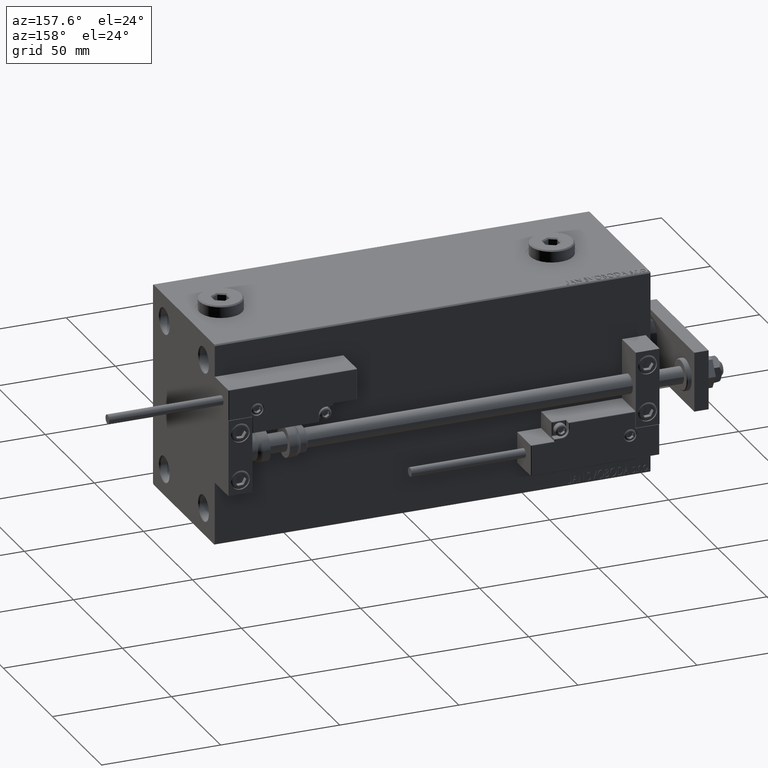
[diagram: clean part render]
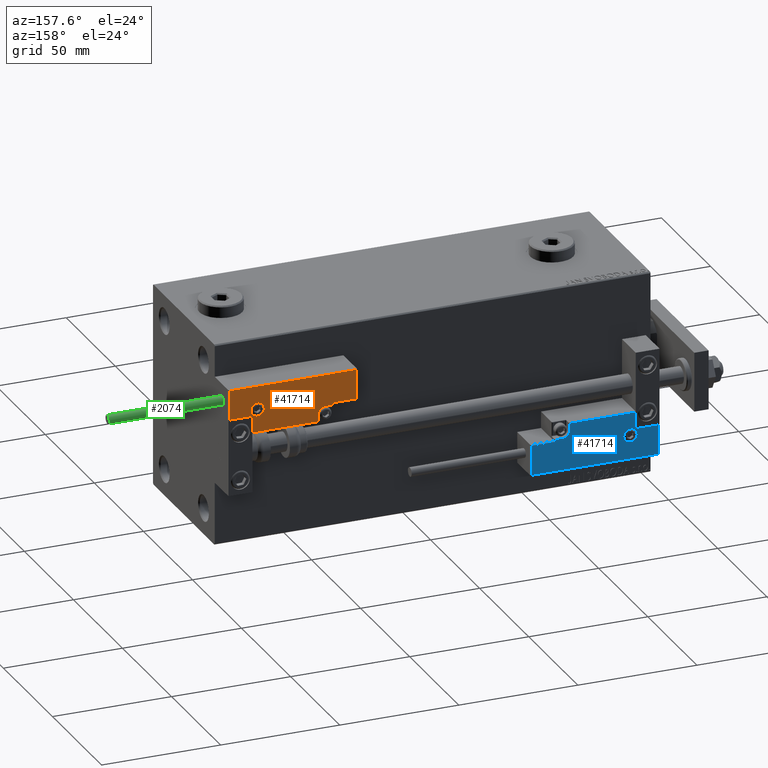
[diagram: same view with three faces highlighted in distinct colors, each labeled with its STEP entity id]
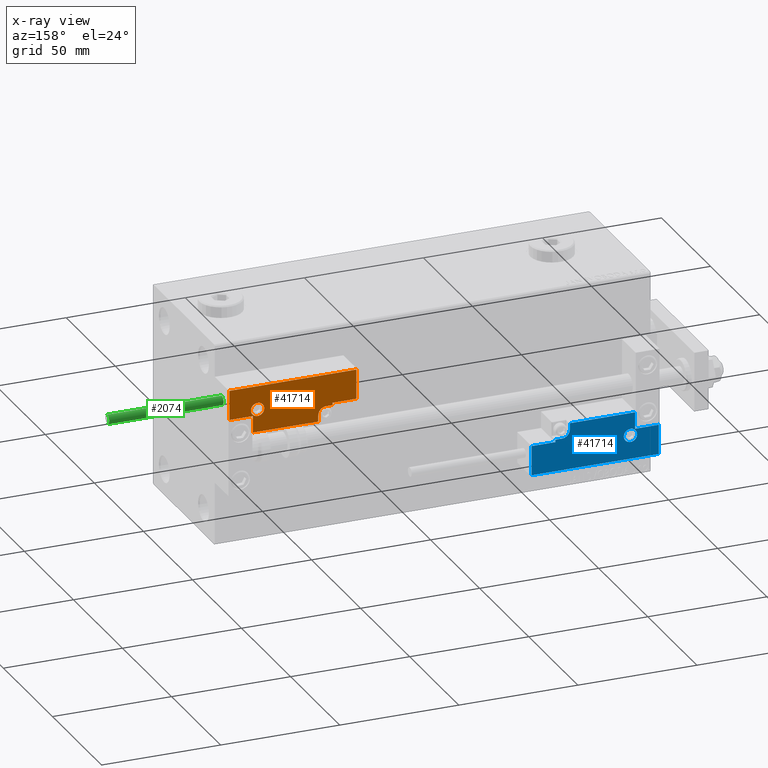
[diagram: x-ray of the same camera — body ghosted, the three highlighted faces saturated]
A machine part, auxiliary view with three faces highlighted in distinct colors.
The next image is the same camera in x-ray (body ghosted, the three faces saturated) — at least one of them is partly hidden behind the body in this view.
Their STEP definitions:

[orange] entity #41714 — the highlighted planar face has unit normal (-0, 1, -0).
#424 = EDGE_CURVE ( 'NONE', #44706, #50837, #34083, .T. ) ;
#619 = DIRECTION ( 'NONE',  ( -0.000000000000000000, 1.000000000000000000, -0.000000000000000000 ) ) ;
#1247 = EDGE_CURVE ( 'NONE', #43377, #32264, #29357, .T. ) ;
#2872 = CARTESIAN_POINT ( 'NONE',  ( -16.69999999999999218, 3.252606517456513302E-15, 14.00000000000000000 ) ) ;
#3636 = CARTESIAN_POINT ( 'NONE',  ( -26.99999999999993605, 19.70000000000002061, 14.00000000000000000 ) ) ;
#4555 = CARTESIAN_POINT ( 'NONE',  ( 16.69999999999999929, 6.300000000000003375, 14.00000000000000000 ) ) ;
#5402 = AXIS2_PLACEMENT_3D ( 'NONE', #21718, #34465, #25964 ) ;
#5436 = CARTESIAN_POINT ( 'NONE',  ( 17.00000000000000000, 6.300000000000003375, 14.00000000000000000 ) ) ;
#5915 = ORIENTED_EDGE ( 'NONE', *, *, #46238, .T. ) ;
#6284 = ORIENTED_EDGE ( 'NONE', *, *, #19109, .T. ) ;
#6567 = VERTEX_POINT ( 'NONE', #21865 ) ;
#8292 = CARTESIAN_POINT ( 'NONE',  ( -16.69999999999999218, 7.300000000000003375, 14.00000000000000000 ) ) ;
#9082 = VECTOR ( 'NONE', #46326, 1000.000000000000000 ) ;
#9225 = VECTOR ( 'NONE', #32712, 1000.000000000000000 ) ;
#9465 = CARTESIAN_POINT ( 'NONE',  ( 11.00000000000000000, 0.3000000000000032085, 14.00000000000000000 ) ) ;
#10227 = CARTESIAN_POINT ( 'NONE',  ( 0.000000000000000000, 0.000000000000000000, 14.00000000000000000 ) ) ;
#10582 = CARTESIAN_POINT ( 'NONE',  ( -16.69999999999999218, 0.3000000000000032085, 14.00000000000000000 ) ) ;
#10649 = AXIS2_PLACEMENT_3D ( 'NONE', #36177, #32191, #32984 ) ;
#11192 = CARTESIAN_POINT ( 'NONE',  ( 13.99999999999999822, 6.300000000000001599, 14.00000000000000000 ) ) ;
#12484 = DIRECTION ( 'NONE',  ( 1.000000000000000000, -1.734723475976796001E-16, 0.000000000000000000 ) ) ;
#12748 = CARTESIAN_POINT ( 'NONE',  ( 27.00000000000006395, 7.300000000000007816, 14.00000000000000000 ) ) ;
#13214 = EDGE_LOOP ( 'NONE', ( #15296, #6284 ) ) ;
#13366 = ORIENTED_EDGE ( 'NONE', *, *, #44494, .T. ) ;
#13710 = DIRECTION ( 'NONE',  ( 1.000000000000000000, -0.000000000000000000, 0.000000000000000000 ) ) ;
#13788 = CARTESIAN_POINT ( 'NONE',  ( -14.79999999999994920, 9.800000000000004263, 14.00000000000000000 ) ) ;
#14130 = ORIENTED_EDGE ( 'NONE', *, *, #41098, .T. ) ;
#14448 = EDGE_CURVE ( 'NONE', #50837, #43377, #23330, .T. ) ;
#15134 = ORIENTED_EDGE ( 'NONE', *, *, #43211, .T. ) ;
#15296 = ORIENTED_EDGE ( 'NONE', *, *, #44277, .T. ) ;
#15958 = LINE ( 'NONE', #12748, #42403 ) ;
#16209 = CARTESIAN_POINT ( 'NONE',  ( 26.70000000000006324, 19.70000000000001705, 14.00000000000000000 ) ) ;
#17454 = CARTESIAN_POINT ( 'NONE',  ( -26.69999999999994600, 7.000000000000005329, 14.00000000000000000 ) ) ;
#17669 = LINE ( 'NONE', #5436, #26586 ) ;
#19109 = EDGE_CURVE ( 'NONE', #43587, #33865, #38473, .T. ) ;
#19583 = DIRECTION ( 'NONE',  ( -1.000000000000000000, 6.424901762877063495E-17, -0.000000000000000000 ) ) ;
#20298 = LINE ( 'NONE', #37012, #51565 ) ;
#20562 = VECTOR ( 'NONE', #19583, 1000.000000000000000 ) ;
#20761 = CARTESIAN_POINT ( 'NONE',  ( 26.70000000000006324, 20.00000000000001776, 14.00000000000000000 ) ) ;
#21718 = CARTESIAN_POINT ( 'NONE',  ( -14.79999999999994920, 9.800000000000004263, 14.00000000000000000 ) ) ;
#21865 = CARTESIAN_POINT ( 'NONE',  ( 10.69999999999999929, 3.000000000000003109, 14.00000000000000000 ) ) ;
#21923 = EDGE_CURVE ( 'NONE', #38252, #32319, #17669, .T. ) ;
#22010 = DIRECTION ( 'NONE',  ( 0.000000000000000000, -0.000000000000000000, -1.000000000000000000 ) ) ;
#22473 = VERTEX_POINT ( 'NONE', #43548 ) ;
#23131 = ORIENTED_EDGE ( 'NONE', *, *, #424, .T. ) ;
#23330 = LINE ( 'NONE', #2872, #41731 ) ;
#24943 = CARTESIAN_POINT ( 'NONE',  ( 16.69999999999999929, 7.000000000000009770, 14.00000000000000000 ) ) ;
#25225 = VECTOR ( 'NONE', #13710, 1000.000000000000000 ) ;
#25600 = ORIENTED_EDGE ( 'NONE', *, *, #26444, .T. ) ;
#25613 = FACE_BOUND ( 'NONE', #13214, .T. ) ;
#25964 = DIRECTION ( 'NONE',  ( 1.000000000000000000, 0.000000000000000000, 0.000000000000000000 ) ) ;
#25973 = ORIENTED_EDGE ( 'NONE', *, *, #14448, .T. ) ;
#26356 = CARTESIAN_POINT ( 'NONE',  ( -16.99999999999999289, 7.300000000000003375, 14.00000000000000000 ) ) ;
#26444 = EDGE_CURVE ( 'NONE', #6567, #38252, #47978, .T. ) ;
#26586 = VECTOR ( 'NONE', #45838, 1000.000000000000000 ) ;
#28075 = CIRCLE ( 'NONE', #39965, 2.800000000000000266 ) ;
#29233 = LINE ( 'NONE', #20761, #9225 ) ;
#29357 = LINE ( 'NONE', #9465, #25225 ) ;
#29587 = DIRECTION ( 'NONE',  ( 1.000000000000000000, 0.000000000000000000, 0.000000000000000000 ) ) ;
#31933 = EDGE_CURVE ( 'NONE', #32264, #6567, #20298, .T. ) ;
#32191 = DIRECTION ( 'NONE',  ( 0.000000000000000000, -0.000000000000000000, -1.000000000000000000 ) ) ;
#32264 = VERTEX_POINT ( 'NONE', #45200 ) ;
#32319 = VERTEX_POINT ( 'NONE', #4555 ) ;
#32712 = DIRECTION ( 'NONE',  ( 0.000000000000000000, 1.000000000000000000, -0.000000000000000000 ) ) ;
#32984 = DIRECTION ( 'NONE',  ( 1.000000000000000000, 0.000000000000000000, 0.000000000000000000 ) ) ;
#33536 = VERTEX_POINT ( 'NONE', #16209 ) ;
#33641 = DIRECTION ( 'NONE',  ( -8.006416042969869188E-16, -1.000000000000000000, 0.000000000000000000 ) ) ;
#33865 = VERTEX_POINT ( 'NONE', #36568 ) ;
#33936 = AXIS2_PLACEMENT_3D ( 'NONE', #10227, #45831, #29587 ) ;
#34083 = LINE ( 'NONE', #26356, #9082 ) ;
#34165 = LINE ( 'NONE', #17454, #50190 ) ;
#34209 = CARTESIAN_POINT ( 'NONE',  ( 26.70000000000006324, 7.300000000000007816, 14.00000000000000000 ) ) ;
#34383 = PLANE ( 'NONE',  #33936 ) ;
#34465 = DIRECTION ( 'NONE',  ( 0.000000000000000000, -0.000000000000000000, -1.000000000000000000 ) ) ;
#34701 = VERTEX_POINT ( 'NONE', #48536 ) ;
#35205 = ORIENTED_EDGE ( 'NONE', *, *, #21923, .T. ) ;
#35532 = EDGE_CURVE ( 'NONE', #46078, #33536, #29233, .T. ) ;
#36122 = ORIENTED_EDGE ( 'NONE', *, *, #35532, .T. ) ;
#36177 = CARTESIAN_POINT ( 'NONE',  ( 13.99999999999999822, 3.000000000000002665, 14.00000000000000000 ) ) ;
#36293 = LINE ( 'NONE', #3636, #20562 ) ;
#36568 = CARTESIAN_POINT ( 'NONE',  ( -11.99999999999994849, 9.800000000000004263, 14.00000000000000000 ) ) ;
#37012 = CARTESIAN_POINT ( 'NONE',  ( 10.69999999999999929, 3.000000000000003109, 14.00000000000000000 ) ) ;
#38252 = VERTEX_POINT ( 'NONE', #11192 ) ;
#38473 = CIRCLE ( 'NONE', #5402, 2.800000000000000266 ) ;
#38856 = CARTESIAN_POINT ( 'NONE',  ( -17.59999999999994813, 9.800000000000004263, 14.00000000000000000 ) ) ;
#39965 = AXIS2_PLACEMENT_3D ( 'NONE', #13788, #22010, #49674 ) ;
#40619 = LINE ( 'NONE', #24943, #46738 ) ;
#41098 = EDGE_CURVE ( 'NONE', #22473, #46078, #15958, .T. ) ;
#41714 = ADVANCED_FACE ( 'NONE', ( #25613, #41824 ), #34383, .T. ) ;
#41731 = VECTOR ( 'NONE', #47787, 1000.000000000000000 ) ;
#41824 = FACE_OUTER_BOUND ( 'NONE', #52254, .T. ) ;
#42403 = VECTOR ( 'NONE', #12484, 1000.000000000000000 ) ;
#43211 = EDGE_CURVE ( 'NONE', #32319, #22473, #40619, .T. ) ;
#43377 = VERTEX_POINT ( 'NONE', #10582 ) ;
#43548 = CARTESIAN_POINT ( 'NONE',  ( 16.69999999999999929, 7.300000000000009592, 14.00000000000000000 ) ) ;
#43587 = VERTEX_POINT ( 'NONE', #38856 ) ;
#43980 = CARTESIAN_POINT ( 'NONE',  ( -26.69999999999994600, 7.300000000000005151, 14.00000000000000000 ) ) ;
#44277 = EDGE_CURVE ( 'NONE', #33865, #43587, #28075, .T. ) ;
#44494 = EDGE_CURVE ( 'NONE', #34701, #44706, #34165, .T. ) ;
#44626 = DIRECTION ( 'NONE',  ( 9.912705577010318647E-16, 1.000000000000000000, 0.000000000000000000 ) ) ;
#44706 = VERTEX_POINT ( 'NONE', #43980 ) ;
#45200 = CARTESIAN_POINT ( 'NONE',  ( 10.69999999999999929, 0.3000000000000032085, 14.00000000000000000 ) ) ;
#45831 = DIRECTION ( 'NONE',  ( -0.000000000000000000, 0.000000000000000000, 1.000000000000000000 ) ) ;
#45838 = DIRECTION ( 'NONE',  ( 1.000000000000000000, 5.782411586589357639E-16, -0.000000000000000000 ) ) ;
#46078 = VERTEX_POINT ( 'NONE', #34209 ) ;
#46238 = EDGE_CURVE ( 'NONE', #33536, #34701, #36293, .T. ) ;
#46326 = DIRECTION ( 'NONE',  ( 1.000000000000000000, -1.734723475976815230E-16, 0.000000000000000000 ) ) ;
#46738 = VECTOR ( 'NONE', #44626, 1000.000000000000000 ) ;
#47787 = DIRECTION ( 'NONE',  ( 0.000000000000000000, -1.000000000000000000, 0.000000000000000000 ) ) ;
#47978 = CIRCLE ( 'NONE', #10649, 3.299999999999997158 ) ;
#48536 = CARTESIAN_POINT ( 'NONE',  ( -26.69999999999993534, 19.70000000000002061, 14.00000000000000000 ) ) ;
#49674 = DIRECTION ( 'NONE',  ( 1.000000000000000000, 0.000000000000000000, 0.000000000000000000 ) ) ;
#50190 = VECTOR ( 'NONE', #33641, 1000.000000000000000 ) ;
#50837 = VERTEX_POINT ( 'NONE', #8292 ) ;
#51565 = VECTOR ( 'NONE', #619, 1000.000000000000000 ) ;
#51649 = ORIENTED_EDGE ( 'NONE', *, *, #31933, .T. ) ;
#52203 = ORIENTED_EDGE ( 'NONE', *, *, #1247, .T. ) ;
#52254 = EDGE_LOOP ( 'NONE', ( #25973, #52203, #51649, #25600, #35205, #15134, #14130, #36122, #5915, #13366, #23131 ) ) ;

[blue] entity #41714 — the highlighted planar face has unit normal (-0, 1, -0).
#424 = EDGE_CURVE ( 'NONE', #44706, #50837, #34083, .T. ) ;
#619 = DIRECTION ( 'NONE',  ( -0.000000000000000000, 1.000000000000000000, -0.000000000000000000 ) ) ;
#1247 = EDGE_CURVE ( 'NONE', #43377, #32264, #29357, .T. ) ;
#2872 = CARTESIAN_POINT ( 'NONE',  ( -16.69999999999999218, 3.252606517456513302E-15, 14.00000000000000000 ) ) ;
#3636 = CARTESIAN_POINT ( 'NONE',  ( -26.99999999999993605, 19.70000000000002061, 14.00000000000000000 ) ) ;
#4555 = CARTESIAN_POINT ( 'NONE',  ( 16.69999999999999929, 6.300000000000003375, 14.00000000000000000 ) ) ;
#5402 = AXIS2_PLACEMENT_3D ( 'NONE', #21718, #34465, #25964 ) ;
#5436 = CARTESIAN_POINT ( 'NONE',  ( 17.00000000000000000, 6.300000000000003375, 14.00000000000000000 ) ) ;
#5915 = ORIENTED_EDGE ( 'NONE', *, *, #46238, .T. ) ;
#6284 = ORIENTED_EDGE ( 'NONE', *, *, #19109, .T. ) ;
#6567 = VERTEX_POINT ( 'NONE', #21865 ) ;
#8292 = CARTESIAN_POINT ( 'NONE',  ( -16.69999999999999218, 7.300000000000003375, 14.00000000000000000 ) ) ;
#9082 = VECTOR ( 'NONE', #46326, 1000.000000000000000 ) ;
#9225 = VECTOR ( 'NONE', #32712, 1000.000000000000000 ) ;
#9465 = CARTESIAN_POINT ( 'NONE',  ( 11.00000000000000000, 0.3000000000000032085, 14.00000000000000000 ) ) ;
#10227 = CARTESIAN_POINT ( 'NONE',  ( 0.000000000000000000, 0.000000000000000000, 14.00000000000000000 ) ) ;
#10582 = CARTESIAN_POINT ( 'NONE',  ( -16.69999999999999218, 0.3000000000000032085, 14.00000000000000000 ) ) ;
#10649 = AXIS2_PLACEMENT_3D ( 'NONE', #36177, #32191, #32984 ) ;
#11192 = CARTESIAN_POINT ( 'NONE',  ( 13.99999999999999822, 6.300000000000001599, 14.00000000000000000 ) ) ;
#12484 = DIRECTION ( 'NONE',  ( 1.000000000000000000, -1.734723475976796001E-16, 0.000000000000000000 ) ) ;
#12748 = CARTESIAN_POINT ( 'NONE',  ( 27.00000000000006395, 7.300000000000007816, 14.00000000000000000 ) ) ;
#13214 = EDGE_LOOP ( 'NONE', ( #15296, #6284 ) ) ;
#13366 = ORIENTED_EDGE ( 'NONE', *, *, #44494, .T. ) ;
#13710 = DIRECTION ( 'NONE',  ( 1.000000000000000000, -0.000000000000000000, 0.000000000000000000 ) ) ;
#13788 = CARTESIAN_POINT ( 'NONE',  ( -14.79999999999994920, 9.800000000000004263, 14.00000000000000000 ) ) ;
#14130 = ORIENTED_EDGE ( 'NONE', *, *, #41098, .T. ) ;
#14448 = EDGE_CURVE ( 'NONE', #50837, #43377, #23330, .T. ) ;
#15134 = ORIENTED_EDGE ( 'NONE', *, *, #43211, .T. ) ;
#15296 = ORIENTED_EDGE ( 'NONE', *, *, #44277, .T. ) ;
#15958 = LINE ( 'NONE', #12748, #42403 ) ;
#16209 = CARTESIAN_POINT ( 'NONE',  ( 26.70000000000006324, 19.70000000000001705, 14.00000000000000000 ) ) ;
#17454 = CARTESIAN_POINT ( 'NONE',  ( -26.69999999999994600, 7.000000000000005329, 14.00000000000000000 ) ) ;
#17669 = LINE ( 'NONE', #5436, #26586 ) ;
#19109 = EDGE_CURVE ( 'NONE', #43587, #33865, #38473, .T. ) ;
#19583 = DIRECTION ( 'NONE',  ( -1.000000000000000000, 6.424901762877063495E-17, -0.000000000000000000 ) ) ;
#20298 = LINE ( 'NONE', #37012, #51565 ) ;
#20562 = VECTOR ( 'NONE', #19583, 1000.000000000000000 ) ;
#20761 = CARTESIAN_POINT ( 'NONE',  ( 26.70000000000006324, 20.00000000000001776, 14.00000000000000000 ) ) ;
#21718 = CARTESIAN_POINT ( 'NONE',  ( -14.79999999999994920, 9.800000000000004263, 14.00000000000000000 ) ) ;
#21865 = CARTESIAN_POINT ( 'NONE',  ( 10.69999999999999929, 3.000000000000003109, 14.00000000000000000 ) ) ;
#21923 = EDGE_CURVE ( 'NONE', #38252, #32319, #17669, .T. ) ;
#22010 = DIRECTION ( 'NONE',  ( 0.000000000000000000, -0.000000000000000000, -1.000000000000000000 ) ) ;
#22473 = VERTEX_POINT ( 'NONE', #43548 ) ;
#23131 = ORIENTED_EDGE ( 'NONE', *, *, #424, .T. ) ;
#23330 = LINE ( 'NONE', #2872, #41731 ) ;
#24943 = CARTESIAN_POINT ( 'NONE',  ( 16.69999999999999929, 7.000000000000009770, 14.00000000000000000 ) ) ;
#25225 = VECTOR ( 'NONE', #13710, 1000.000000000000000 ) ;
#25600 = ORIENTED_EDGE ( 'NONE', *, *, #26444, .T. ) ;
#25613 = FACE_BOUND ( 'NONE', #13214, .T. ) ;
#25964 = DIRECTION ( 'NONE',  ( 1.000000000000000000, 0.000000000000000000, 0.000000000000000000 ) ) ;
#25973 = ORIENTED_EDGE ( 'NONE', *, *, #14448, .T. ) ;
#26356 = CARTESIAN_POINT ( 'NONE',  ( -16.99999999999999289, 7.300000000000003375, 14.00000000000000000 ) ) ;
#26444 = EDGE_CURVE ( 'NONE', #6567, #38252, #47978, .T. ) ;
#26586 = VECTOR ( 'NONE', #45838, 1000.000000000000000 ) ;
#28075 = CIRCLE ( 'NONE', #39965, 2.800000000000000266 ) ;
#29233 = LINE ( 'NONE', #20761, #9225 ) ;
#29357 = LINE ( 'NONE', #9465, #25225 ) ;
#29587 = DIRECTION ( 'NONE',  ( 1.000000000000000000, 0.000000000000000000, 0.000000000000000000 ) ) ;
#31933 = EDGE_CURVE ( 'NONE', #32264, #6567, #20298, .T. ) ;
#32191 = DIRECTION ( 'NONE',  ( 0.000000000000000000, -0.000000000000000000, -1.000000000000000000 ) ) ;
#32264 = VERTEX_POINT ( 'NONE', #45200 ) ;
#32319 = VERTEX_POINT ( 'NONE', #4555 ) ;
#32712 = DIRECTION ( 'NONE',  ( 0.000000000000000000, 1.000000000000000000, -0.000000000000000000 ) ) ;
#32984 = DIRECTION ( 'NONE',  ( 1.000000000000000000, 0.000000000000000000, 0.000000000000000000 ) ) ;
#33536 = VERTEX_POINT ( 'NONE', #16209 ) ;
#33641 = DIRECTION ( 'NONE',  ( -8.006416042969869188E-16, -1.000000000000000000, 0.000000000000000000 ) ) ;
#33865 = VERTEX_POINT ( 'NONE', #36568 ) ;
#33936 = AXIS2_PLACEMENT_3D ( 'NONE', #10227, #45831, #29587 ) ;
#34083 = LINE ( 'NONE', #26356, #9082 ) ;
#34165 = LINE ( 'NONE', #17454, #50190 ) ;
#34209 = CARTESIAN_POINT ( 'NONE',  ( 26.70000000000006324, 7.300000000000007816, 14.00000000000000000 ) ) ;
#34383 = PLANE ( 'NONE',  #33936 ) ;
#34465 = DIRECTION ( 'NONE',  ( 0.000000000000000000, -0.000000000000000000, -1.000000000000000000 ) ) ;
#34701 = VERTEX_POINT ( 'NONE', #48536 ) ;
#35205 = ORIENTED_EDGE ( 'NONE', *, *, #21923, .T. ) ;
#35532 = EDGE_CURVE ( 'NONE', #46078, #33536, #29233, .T. ) ;
#36122 = ORIENTED_EDGE ( 'NONE', *, *, #35532, .T. ) ;
#36177 = CARTESIAN_POINT ( 'NONE',  ( 13.99999999999999822, 3.000000000000002665, 14.00000000000000000 ) ) ;
#36293 = LINE ( 'NONE', #3636, #20562 ) ;
#36568 = CARTESIAN_POINT ( 'NONE',  ( -11.99999999999994849, 9.800000000000004263, 14.00000000000000000 ) ) ;
#37012 = CARTESIAN_POINT ( 'NONE',  ( 10.69999999999999929, 3.000000000000003109, 14.00000000000000000 ) ) ;
#38252 = VERTEX_POINT ( 'NONE', #11192 ) ;
#38473 = CIRCLE ( 'NONE', #5402, 2.800000000000000266 ) ;
#38856 = CARTESIAN_POINT ( 'NONE',  ( -17.59999999999994813, 9.800000000000004263, 14.00000000000000000 ) ) ;
#39965 = AXIS2_PLACEMENT_3D ( 'NONE', #13788, #22010, #49674 ) ;
#40619 = LINE ( 'NONE', #24943, #46738 ) ;
#41098 = EDGE_CURVE ( 'NONE', #22473, #46078, #15958, .T. ) ;
#41714 = ADVANCED_FACE ( 'NONE', ( #25613, #41824 ), #34383, .T. ) ;
#41731 = VECTOR ( 'NONE', #47787, 1000.000000000000000 ) ;
#41824 = FACE_OUTER_BOUND ( 'NONE', #52254, .T. ) ;
#42403 = VECTOR ( 'NONE', #12484, 1000.000000000000000 ) ;
#43211 = EDGE_CURVE ( 'NONE', #32319, #22473, #40619, .T. ) ;
#43377 = VERTEX_POINT ( 'NONE', #10582 ) ;
#43548 = CARTESIAN_POINT ( 'NONE',  ( 16.69999999999999929, 7.300000000000009592, 14.00000000000000000 ) ) ;
#43587 = VERTEX_POINT ( 'NONE', #38856 ) ;
#43980 = CARTESIAN_POINT ( 'NONE',  ( -26.69999999999994600, 7.300000000000005151, 14.00000000000000000 ) ) ;
#44277 = EDGE_CURVE ( 'NONE', #33865, #43587, #28075, .T. ) ;
#44494 = EDGE_CURVE ( 'NONE', #34701, #44706, #34165, .T. ) ;
#44626 = DIRECTION ( 'NONE',  ( 9.912705577010318647E-16, 1.000000000000000000, 0.000000000000000000 ) ) ;
#44706 = VERTEX_POINT ( 'NONE', #43980 ) ;
#45200 = CARTESIAN_POINT ( 'NONE',  ( 10.69999999999999929, 0.3000000000000032085, 14.00000000000000000 ) ) ;
#45831 = DIRECTION ( 'NONE',  ( -0.000000000000000000, 0.000000000000000000, 1.000000000000000000 ) ) ;
#45838 = DIRECTION ( 'NONE',  ( 1.000000000000000000, 5.782411586589357639E-16, -0.000000000000000000 ) ) ;
#46078 = VERTEX_POINT ( 'NONE', #34209 ) ;
#46238 = EDGE_CURVE ( 'NONE', #33536, #34701, #36293, .T. ) ;
#46326 = DIRECTION ( 'NONE',  ( 1.000000000000000000, -1.734723475976815230E-16, 0.000000000000000000 ) ) ;
#46738 = VECTOR ( 'NONE', #44626, 1000.000000000000000 ) ;
#47787 = DIRECTION ( 'NONE',  ( 0.000000000000000000, -1.000000000000000000, 0.000000000000000000 ) ) ;
#47978 = CIRCLE ( 'NONE', #10649, 3.299999999999997158 ) ;
#48536 = CARTESIAN_POINT ( 'NONE',  ( -26.69999999999993534, 19.70000000000002061, 14.00000000000000000 ) ) ;
#49674 = DIRECTION ( 'NONE',  ( 1.000000000000000000, 0.000000000000000000, 0.000000000000000000 ) ) ;
#50190 = VECTOR ( 'NONE', #33641, 1000.000000000000000 ) ;
#50837 = VERTEX_POINT ( 'NONE', #8292 ) ;
#51565 = VECTOR ( 'NONE', #619, 1000.000000000000000 ) ;
#51649 = ORIENTED_EDGE ( 'NONE', *, *, #31933, .T. ) ;
#52203 = ORIENTED_EDGE ( 'NONE', *, *, #1247, .T. ) ;
#52254 = EDGE_LOOP ( 'NONE', ( #25973, #52203, #51649, #25600, #35205, #15134, #14130, #36122, #5915, #13366, #23131 ) ) ;

[green] entity #2074 — the highlighted cylindrical surface (edge-blend (fillet) strip) has radius 1.9 mm, axis along (-1, -0, -0).
#2074 = ADVANCED_FACE ( 'NONE', ( #3122 ), #42728, .T. ) ;
#2593 = DIRECTION ( 'NONE',  ( -1.000000000000000000, 0.000000000000000000, 0.000000000000000000 ) ) ;
#2806 = ORIENTED_EDGE ( 'NONE', *, *, #39692, .T. ) ;
#2841 = DIRECTION ( 'NONE',  ( 0.000000000000000000, 0.000000000000000000, 1.000000000000000000 ) ) ;
#3122 = FACE_OUTER_BOUND ( 'NONE', #47583, .T. ) ;
#5036 = AXIS2_PLACEMENT_3D ( 'NONE', #48857, #5242, #32363 ) ;
#5242 = DIRECTION ( 'NONE',  ( 0.000000000000000000, 0.000000000000000000, 1.000000000000000000 ) ) ;
#6323 = CARTESIAN_POINT ( 'NONE',  ( 0.000000000000000000, 0.000000000000000000, 48.00000000000000000 ) ) ;
#7030 = ORIENTED_EDGE ( 'NONE', *, *, #23100, .F. ) ;
#7371 = DIRECTION ( 'NONE',  ( -0.000000000000000000, -0.000000000000000000, -1.000000000000000000 ) ) ;
#7948 = VERTEX_POINT ( 'NONE', #8728 ) ;
#8728 = CARTESIAN_POINT ( 'NONE',  ( -1.899999999999999467, 0.000000000000000000, 48.00000000000000000 ) ) ;
#10729 = VERTEX_POINT ( 'NONE', #41308 ) ;
#16847 = CARTESIAN_POINT ( 'NONE',  ( -1.899999999999999467, 0.000000000000000000, 0.000000000000000000 ) ) ;
#17726 = AXIS2_PLACEMENT_3D ( 'NONE', #31246, #2841, #22767 ) ;
#18456 = ORIENTED_EDGE ( 'NONE', *, *, #43339, .T. ) ;
#21866 = VERTEX_POINT ( 'NONE', #45054 ) ;
#22767 = DIRECTION ( 'NONE',  ( 1.000000000000000000, 0.000000000000000000, 0.000000000000000000 ) ) ;
#22789 = DIRECTION ( 'NONE',  ( -0.000000000000000000, -0.000000000000000000, -1.000000000000000000 ) ) ;
#23100 = EDGE_CURVE ( 'NONE', #7948, #49750, #36649, .T. ) ;
#24100 = VECTOR ( 'NONE', #44903, 1000.000000000000000 ) ;
#31001 = CARTESIAN_POINT ( 'NONE',  ( 1.899999999999999467, 2.326828918379970872E-16, 48.00000000000000000 ) ) ;
#31246 = CARTESIAN_POINT ( 'NONE',  ( 0.000000000000000000, 0.000000000000000000, 48.00000000000000000 ) ) ;
#32037 = AXIS2_PLACEMENT_3D ( 'NONE', #6323, #22789, #2593 ) ;
#32133 = CARTESIAN_POINT ( 'NONE',  ( -1.899999999999999467, 0.000000000000000000, 48.00000000000000000 ) ) ;
#32363 = DIRECTION ( 'NONE',  ( 1.000000000000000000, 0.000000000000000000, 0.000000000000000000 ) ) ;
#34572 = EDGE_CURVE ( 'NONE', #10729, #7948, #41440, .T. ) ;
#36649 = LINE ( 'NONE', #32133, #24100 ) ;
#39692 = EDGE_CURVE ( 'NONE', #21866, #49750, #47493, .T. ) ;
#41308 = CARTESIAN_POINT ( 'NONE',  ( 1.899999999999999467, 2.326828918379970872E-16, 48.00000000000000000 ) ) ;
#41440 = CIRCLE ( 'NONE', #17726, 1.899999999999999467 ) ;
#42728 = CYLINDRICAL_SURFACE ( 'NONE', #32037, 1.899999999999999467 ) ;
#43339 = EDGE_CURVE ( 'NONE', #10729, #21866, #51757, .T. ) ;
#43345 = VECTOR ( 'NONE', #7371, 1000.000000000000000 ) ;
#44903 = DIRECTION ( 'NONE',  ( -0.000000000000000000, -0.000000000000000000, -1.000000000000000000 ) ) ;
#45054 = CARTESIAN_POINT ( 'NONE',  ( 1.899999999999999467, 2.326828918379970872E-16, 0.000000000000000000 ) ) ;
#47493 = CIRCLE ( 'NONE', #5036, 1.899999999999999467 ) ;
#47583 = EDGE_LOOP ( 'NONE', ( #51971, #18456, #2806, #7030 ) ) ;
#48857 = CARTESIAN_POINT ( 'NONE',  ( 0.000000000000000000, 0.000000000000000000, 0.000000000000000000 ) ) ;
#49750 = VERTEX_POINT ( 'NONE', #16847 ) ;
#51757 = LINE ( 'NONE', #31001, #43345 ) ;
#51971 = ORIENTED_EDGE ( 'NONE', *, *, #34572, .F. ) ;